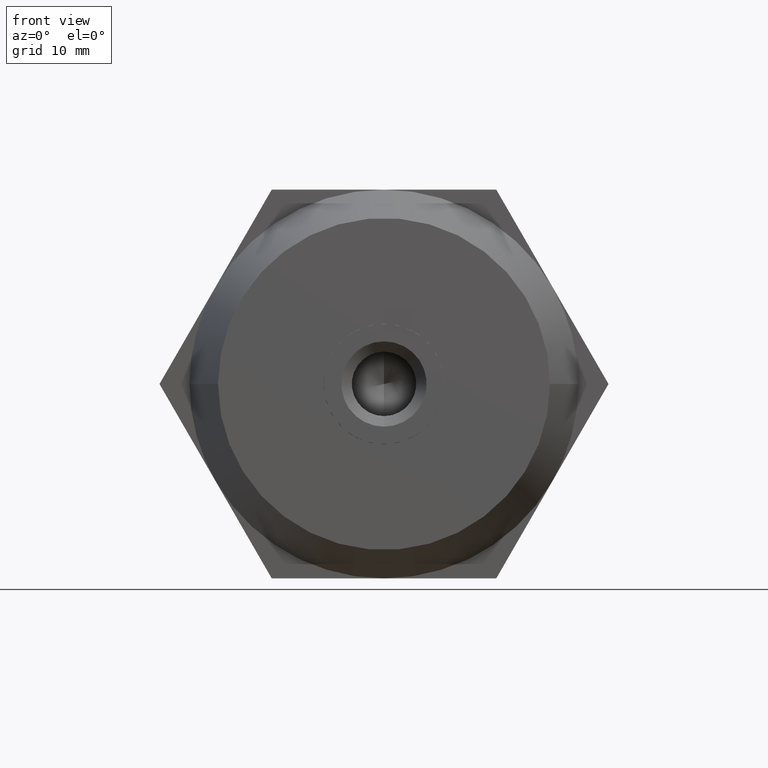
[diagram: clean part render]
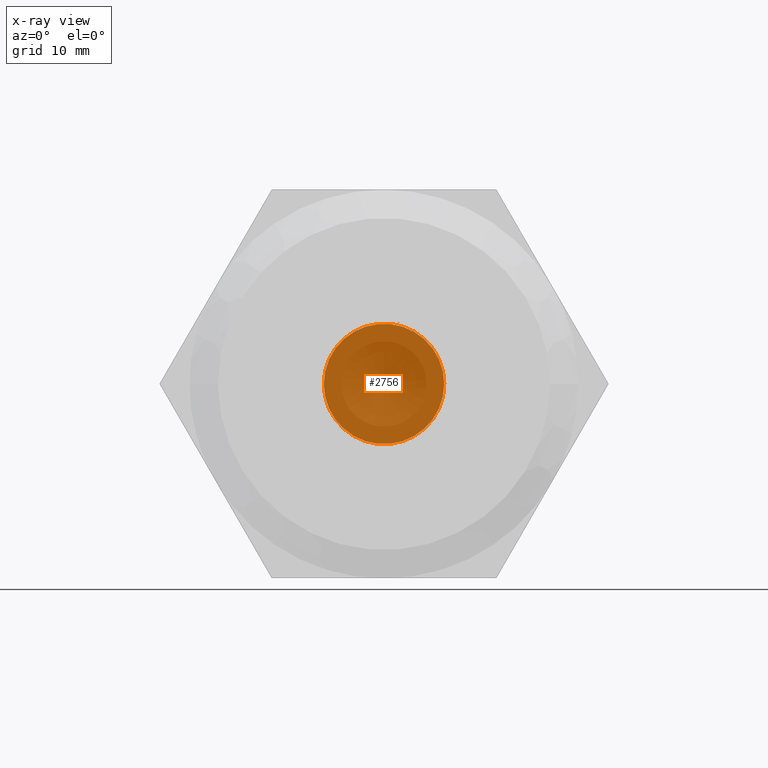
[diagram: x-ray — body ghosted, one internal face saturated and labeled with its STEP entity id]
A machine part, front view, then the same camera in x-ray: the body is ghosted and one INTERNAL B-rep face — a face not visible from any outside direction — is saturated and labeled: STEP entity #2756.
In plain terms, the highlighted planar face has unit normal (0, 1, 0).
Its self-contained STEP definition (entity closure, byte-faithful):
#153 = ORIENTED_EDGE ( 'NONE', *, *, #1211, .T. ) ;
#155 = CARTESIAN_POINT ( 'NONE',  ( 1.804997669572775000E-015, 0.0000000000000000000, 1.351799473378030100E-017 ) ) ;
#204 = DIRECTION ( 'NONE',  ( 0.0000000000000000000, 0.0000000000000000000, 1.000000000000000000 ) ) ;
#212 = CIRCLE ( 'NONE', #3396, 6.349999999999999600 ) ;
#278 = CARTESIAN_POINT ( 'NONE',  ( -3.174999999999999800, 0.0000000000000000000, 5.499261314031190100 ) ) ;
#404 = DIRECTION ( 'NONE',  ( 0.0000000000000000000, 0.0000000000000000000, 1.000000000000000000 ) ) ;
#431 = CARTESIAN_POINT ( 'NONE',  ( 1.804997669572775000E-015, 0.0000000000000000000, 1.351799473378030100E-017 ) ) ;
#465 = CARTESIAN_POINT ( 'NONE',  ( 1.804997669572775000E-015, 0.0000000000000000000, 1.351799473378030100E-017 ) ) ;
#640 = CIRCLE ( 'NONE', #3430, 6.349999999999999600 ) ;
#872 = EDGE_CURVE ( 'NONE', #2065, #3003, #3794, .T. ) ;
#947 = DIRECTION ( 'NONE',  ( 0.0000000000000000000, 0.0000000000000000000, 1.000000000000000000 ) ) ;
#1016 = VERTEX_POINT ( 'NONE', #1184 ) ;
#1051 = DIRECTION ( 'NONE',  ( -0.0000000000000000000, -1.000000000000000000, -0.0000000000000000000 ) ) ;
#1143 = AXIS2_PLACEMENT_3D ( 'NONE', #2086, #2449, #1568 ) ;
#1184 = CARTESIAN_POINT ( 'NONE',  ( 6.349999999999999600, -3.862593225090919900E-015, -1.301084699489792000E-015 ) ) ;
#1211 = EDGE_CURVE ( 'NONE', #3379, #1459, #212, .T. ) ;
#1243 = CARTESIAN_POINT ( 'NONE',  ( 3.175000000000045100, -7.719193535670989900E-013, -5.499261314031159900 ) ) ;
#1343 = DIRECTION ( 'NONE',  ( 1.776356839400250500E-015, 0.0000000000000000000, 1.000000000000000000 ) ) ;
#1437 = AXIS2_PLACEMENT_3D ( 'NONE', #465, #3110, #1343 ) ;
#1459 = VERTEX_POINT ( 'NONE', #278 ) ;
#1568 = DIRECTION ( 'NONE',  ( 0.0000000000000000000, 0.0000000000000000000, 1.000000000000000000 ) ) ;
#1610 = DIRECTION ( 'NONE',  ( -0.0000000000000000000, -1.000000000000000000, -0.0000000000000000000 ) ) ;
#1693 = CARTESIAN_POINT ( 'NONE',  ( -6.349999999999999600, 5.889884270899059400E-016, 1.301000513667623900E-015 ) ) ;
#1777 = PLANE ( 'NONE',  #1143 ) ;
#1794 = ORIENTED_EDGE ( 'NONE', *, *, #872, .T. ) ;
#1888 = DIRECTION ( 'NONE',  ( -8.881784197001252300E-016, 0.0000000000000000000, 1.000000000000000000 ) ) ;
#1943 = FACE_OUTER_BOUND ( 'NONE', #3049, .T. ) ;
#1960 = DIRECTION ( 'NONE',  ( -0.0000000000000000000, -1.000000000000000000, -0.0000000000000000000 ) ) ;
#1983 = EDGE_CURVE ( 'NONE', #1016, #3379, #2124, .T. ) ;
#2065 = VERTEX_POINT ( 'NONE', #2825 ) ;
#2080 = ORIENTED_EDGE ( 'NONE', *, *, #2547, .T. ) ;
#2086 = CARTESIAN_POINT ( 'NONE',  ( 0.0000000000000000000, 0.0000000000000000000, 0.0000000000000000000 ) ) ;
#2093 = DIRECTION ( 'NONE',  ( -0.0000000000000000000, -1.000000000000000000, -0.0000000000000000000 ) ) ;
#2124 = CIRCLE ( 'NONE', #2950, 6.349999999999999600 ) ;
#2125 = CARTESIAN_POINT ( 'NONE',  ( 3.174999999999955000, -7.698890001475180400E-013, 5.499261314031209700 ) ) ;
#2201 = EDGE_CURVE ( 'NONE', #2985, #2065, #3783, .T. ) ;
#2416 = CARTESIAN_POINT ( 'NONE',  ( 1.804997669572775000E-015, 0.0000000000000000000, 1.351799473378030100E-017 ) ) ;
#2449 = DIRECTION ( 'NONE',  ( 0.0000000000000000000, 1.000000000000000000, 0.0000000000000000000 ) ) ;
#2537 = DIRECTION ( 'NONE',  ( -0.0000000000000000000, -1.000000000000000000, -0.0000000000000000000 ) ) ;
#2547 = EDGE_CURVE ( 'NONE', #1459, #2985, #2962, .T. ) ;
#2629 = ORIENTED_EDGE ( 'NONE', *, *, #2897, .T. ) ;
#2756 = ADVANCED_FACE ( 'NONE', ( #1943 ), #1777, .F. ) ;
#2801 = ORIENTED_EDGE ( 'NONE', *, *, #1983, .T. ) ;
#2825 = CARTESIAN_POINT ( 'NONE',  ( -3.174999999999950100, -7.685760653845880100E-013, -5.499261314031209700 ) ) ;
#2897 = EDGE_CURVE ( 'NONE', #3003, #1016, #640, .T. ) ;
#2950 = AXIS2_PLACEMENT_3D ( 'NONE', #155, #1610, #404 ) ;
#2962 = CIRCLE ( 'NONE', #3754, 6.349999999999999600 ) ;
#2985 = VERTEX_POINT ( 'NONE', #1693 ) ;
#3003 = VERTEX_POINT ( 'NONE', #1243 ) ;
#3049 = EDGE_LOOP ( 'NONE', ( #153, #2080, #3663, #1794, #2629, #2801 ) ) ;
#3071 = DIRECTION ( 'NONE',  ( 0.0000000000000000000, 0.0000000000000000000, 1.000000000000000000 ) ) ;
#3110 = DIRECTION ( 'NONE',  ( -0.0000000000000000000, -1.000000000000000000, -0.0000000000000000000 ) ) ;
#3168 = AXIS2_PLACEMENT_3D ( 'NONE', #3685, #2537, #3071 ) ;
#3366 = CARTESIAN_POINT ( 'NONE',  ( 1.804997669572775000E-015, 0.0000000000000000000, 1.351799473378030100E-017 ) ) ;
#3379 = VERTEX_POINT ( 'NONE', #2125 ) ;
#3396 = AXIS2_PLACEMENT_3D ( 'NONE', #3366, #1960, #204 ) ;
#3430 = AXIS2_PLACEMENT_3D ( 'NONE', #431, #1051, #1888 ) ;
#3663 = ORIENTED_EDGE ( 'NONE', *, *, #2201, .T. ) ;
#3685 = CARTESIAN_POINT ( 'NONE',  ( 1.804997669572775000E-015, 0.0000000000000000000, 1.351799473378030100E-017 ) ) ;
#3754 = AXIS2_PLACEMENT_3D ( 'NONE', #2416, #2093, #947 ) ;
#3783 = CIRCLE ( 'NONE', #3168, 6.349999999999999600 ) ;
#3794 = CIRCLE ( 'NONE', #1437, 6.349999999999999600 ) ;